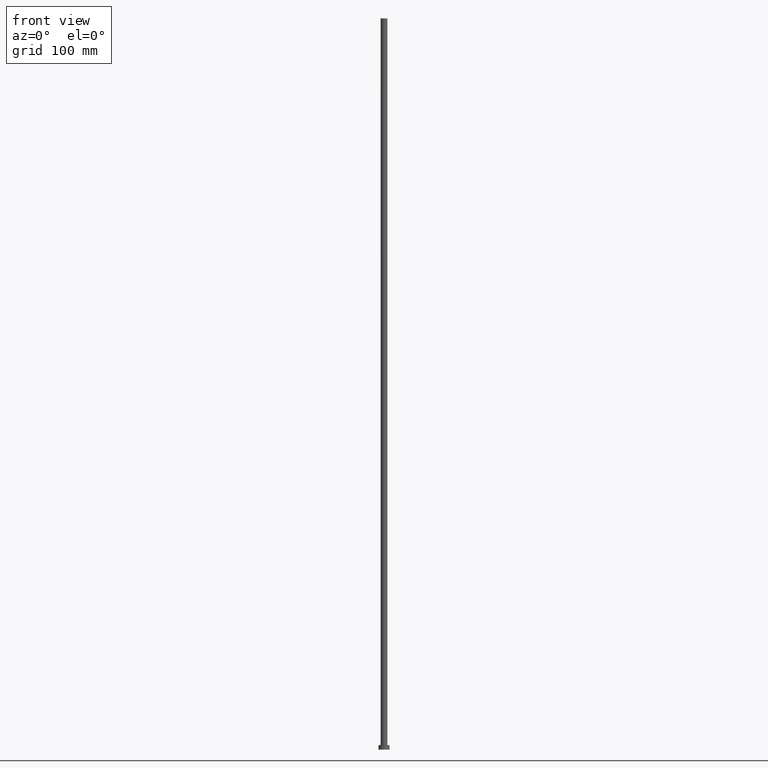
[diagram: clean part render]
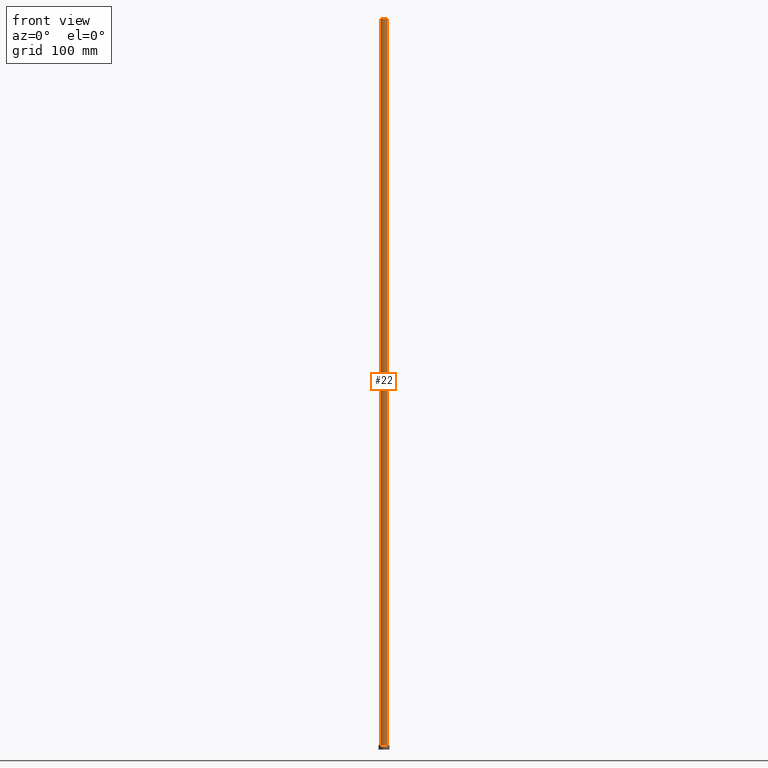
[diagram: same view with one face highlighted and labeled with its STEP entity id]
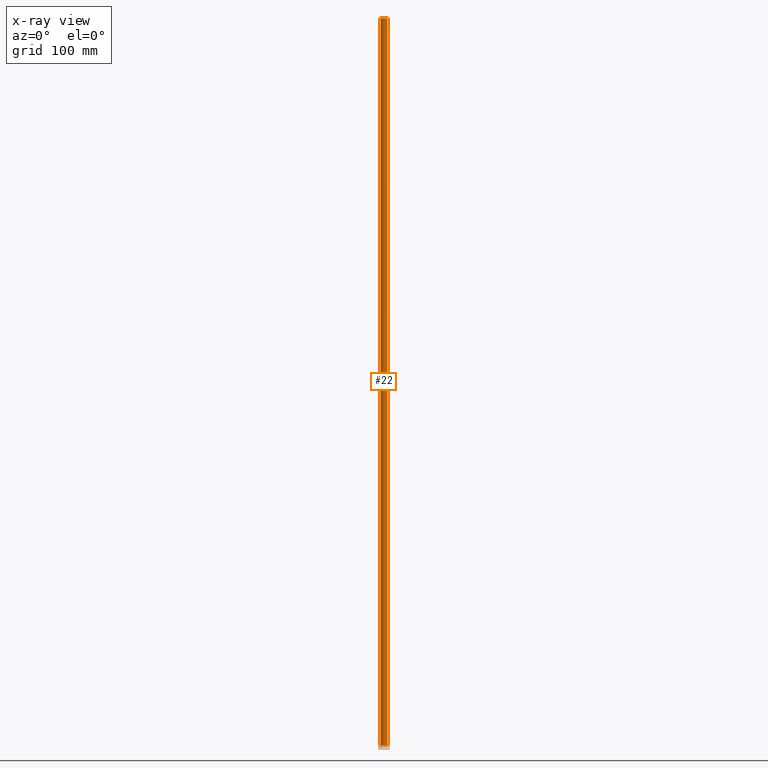
[diagram: x-ray of the same camera — body ghosted, the highlighted face saturated]
A machine part, front view. The second image highlights one B-rep face of the part: STEP entity #22.
The next image is the same camera in x-ray: the body ghosted, the highlighted face saturated — about 0% of this face is hidden behind the body in this view.
In plain terms, the highlighted cylindrical surface (edge-blend (fillet) strip) has radius 3.75 mm, axis along (-0, -0, -1).
Its self-contained STEP definition (entity closure, byte-faithful):
#1 = EDGE_CURVE ( 'NONE', #215, #52, #128, .T. ) ;
#13 = CARTESIAN_POINT ( 'NONE',  ( 3.750000000000000000, 4.592425496802573972E-16, 800.0000000000000000 ) ) ;
#18 = DIRECTION ( 'NONE',  ( 1.000000000000000000, 0.000000000000000000, 0.000000000000000000 ) ) ;
#20 = CARTESIAN_POINT ( 'NONE',  ( -3.750000000000000000, 0.000000000000000000, 800.0000000000000000 ) ) ;
#22 = ADVANCED_FACE ( 'NONE', ( #170 ), #146, .T. ) ;
#33 = CIRCLE ( 'NONE', #124, 3.750000000000000000 ) ;
#37 = CARTESIAN_POINT ( 'NONE',  ( 3.750000000000000000, 4.592425496802573972E-16, 800.0000000000000000 ) ) ;
#40 = ORIENTED_EDGE ( 'NONE', *, *, #51, .F. ) ;
#48 = VERTEX_POINT ( 'NONE', #192 ) ;
#49 = ORIENTED_EDGE ( 'NONE', *, *, #181, .T. ) ;
#51 = EDGE_CURVE ( 'NONE', #235, #215, #56, .T. ) ;
#52 = VERTEX_POINT ( 'NONE', #109 ) ;
#56 = CIRCLE ( 'NONE', #239, 3.750000000000000000 ) ;
#72 = ORIENTED_EDGE ( 'NONE', *, *, #206, .T. ) ;
#109 = CARTESIAN_POINT ( 'NONE',  ( 3.750000000000000000, 4.592425496802573972E-16, 5.000000000000000000 ) ) ;
#111 = VECTOR ( 'NONE', #168, 1000.000000000000000 ) ;
#114 = DIRECTION ( 'NONE',  ( -0.000000000000000000, -0.000000000000000000, -1.000000000000000000 ) ) ;
#124 = AXIS2_PLACEMENT_3D ( 'NONE', #255, #252, #234 ) ;
#128 = LINE ( 'NONE', #13, #111 ) ;
#134 = CARTESIAN_POINT ( 'NONE',  ( 0.000000000000000000, 0.000000000000000000, 800.0000000000000000 ) ) ;
#138 = CARTESIAN_POINT ( 'NONE',  ( -3.750000000000000000, 0.000000000000000000, 800.0000000000000000 ) ) ;
#146 = CYLINDRICAL_SURFACE ( 'NONE', #179, 3.750000000000000000 ) ;
#156 = ORIENTED_EDGE ( 'NONE', *, *, #1, .F. ) ;
#168 = DIRECTION ( 'NONE',  ( -0.000000000000000000, -0.000000000000000000, -1.000000000000000000 ) ) ;
#170 = FACE_OUTER_BOUND ( 'NONE', #208, .T. ) ;
#177 = LINE ( 'NONE', #20, #202 ) ;
#179 = AXIS2_PLACEMENT_3D ( 'NONE', #245, #203, #226 ) ;
#181 = EDGE_CURVE ( 'NONE', #235, #48, #177, .T. ) ;
#192 = CARTESIAN_POINT ( 'NONE',  ( -3.750000000000000000, 0.000000000000000000, 5.000000000000000000 ) ) ;
#202 = VECTOR ( 'NONE', #114, 1000.000000000000000 ) ;
#203 = DIRECTION ( 'NONE',  ( -0.000000000000000000, -0.000000000000000000, -1.000000000000000000 ) ) ;
#206 = EDGE_CURVE ( 'NONE', #48, #52, #33, .T. ) ;
#208 = EDGE_LOOP ( 'NONE', ( #156, #40, #49, #72 ) ) ;
#210 = DIRECTION ( 'NONE',  ( 0.000000000000000000, 0.000000000000000000, 1.000000000000000000 ) ) ;
#215 = VERTEX_POINT ( 'NONE', #37 ) ;
#226 = DIRECTION ( 'NONE',  ( -1.000000000000000000, 0.000000000000000000, 0.000000000000000000 ) ) ;
#234 = DIRECTION ( 'NONE',  ( 1.000000000000000000, 0.000000000000000000, 0.000000000000000000 ) ) ;
#235 = VERTEX_POINT ( 'NONE', #138 ) ;
#239 = AXIS2_PLACEMENT_3D ( 'NONE', #134, #210, #18 ) ;
#245 = CARTESIAN_POINT ( 'NONE',  ( 0.000000000000000000, 0.000000000000000000, 800.0000000000000000 ) ) ;
#252 = DIRECTION ( 'NONE',  ( 0.000000000000000000, 0.000000000000000000, 1.000000000000000000 ) ) ;
#255 = CARTESIAN_POINT ( 'NONE',  ( 0.000000000000000000, 0.000000000000000000, 5.000000000000000000 ) ) ;